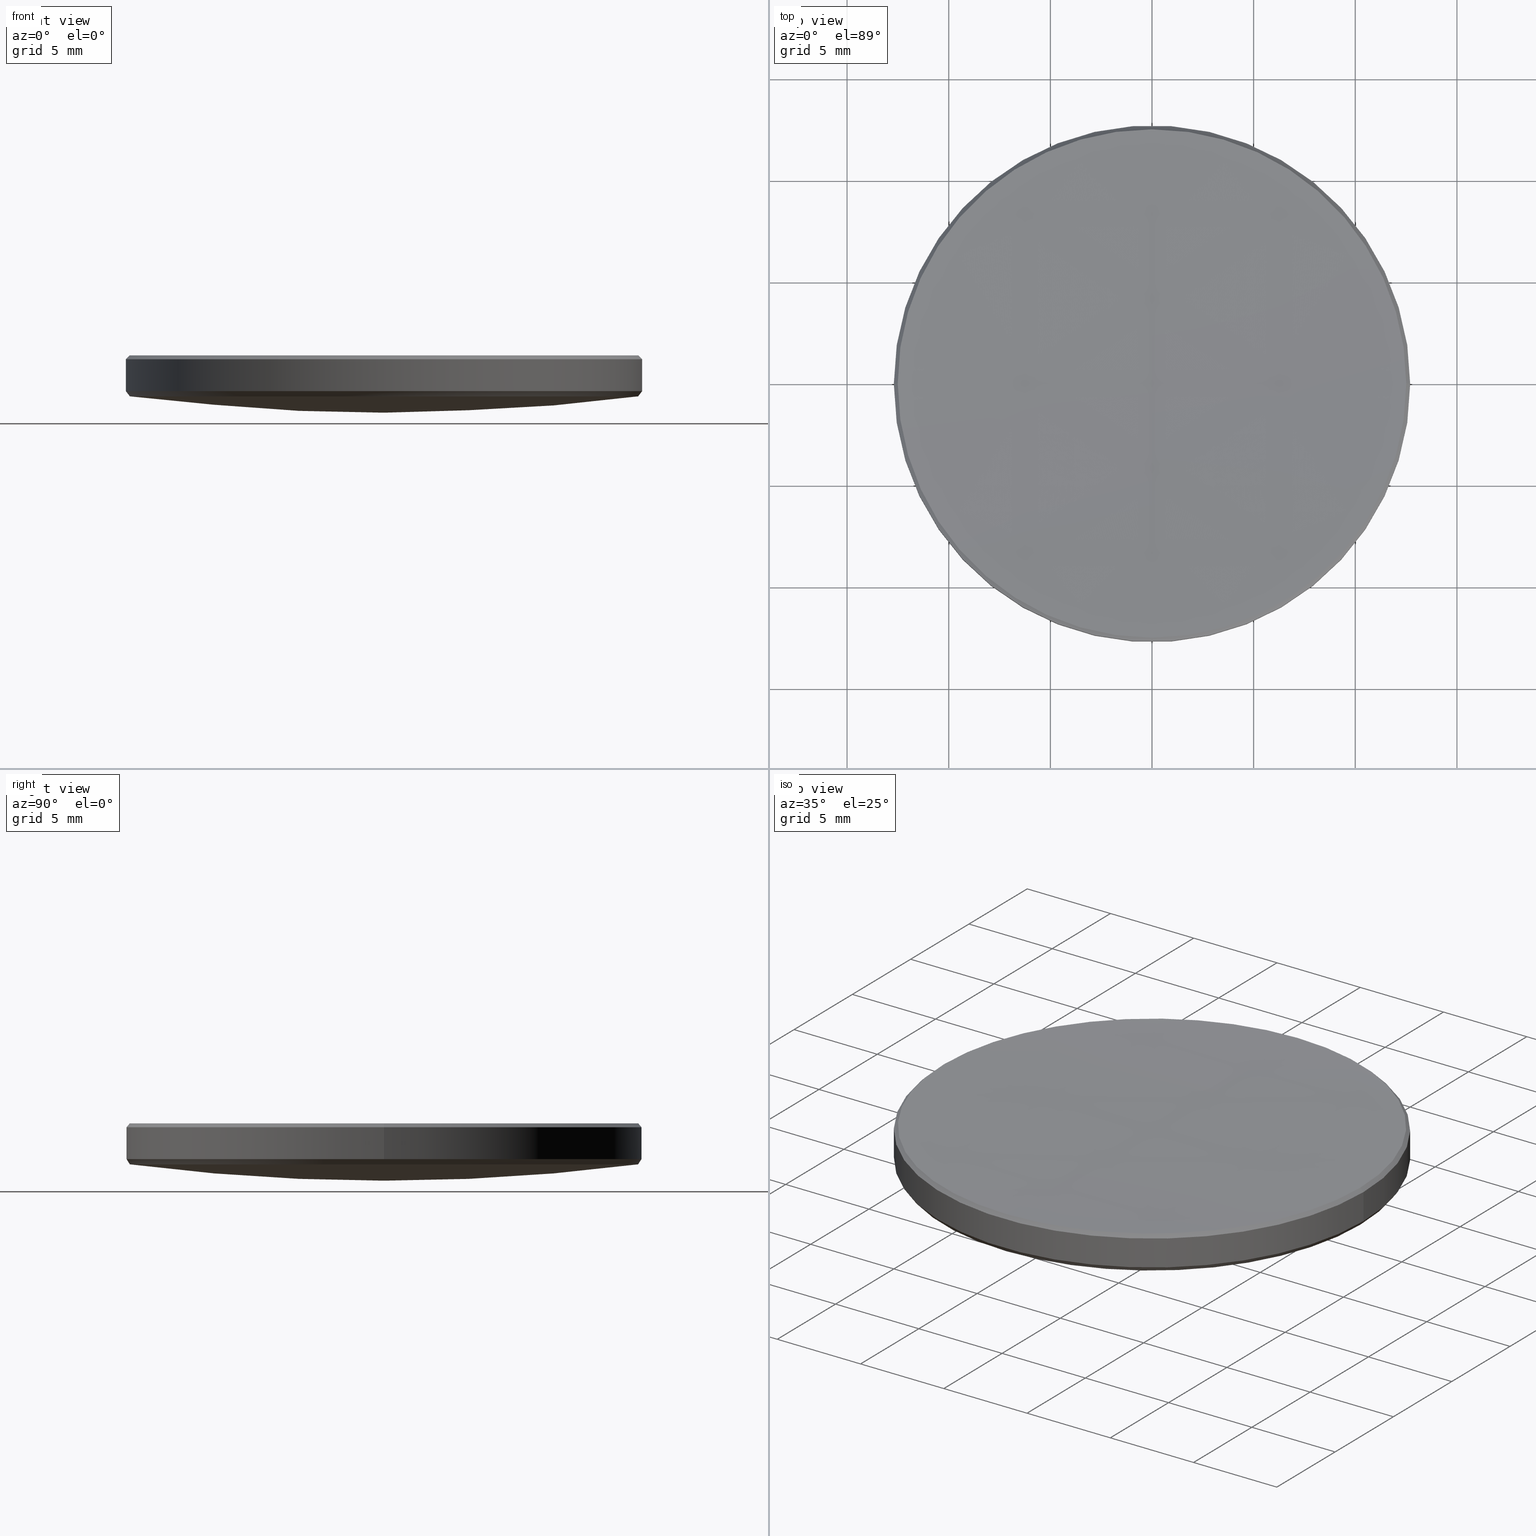
[diagram: canonical four-view strip — front | top / right | iso, engineering-drawing reading convention]
A machine part, canonical four-view strip (front | top / right | iso — engineering-drawing reading convention). The complete STEP part file that produces these views, byte-faithful:
ISO-10303-21;
HEADER;
FILE_DESCRIPTION (( 'STEP AP214' ),
    '1' );
FILE_NAME ('GLM2-025B-300-UV.STEP',
    '2024-08-09T02:46:19',
    ( 'Windows User' ),
    ( 'P R C' ),
    'SwSTEP 2.0',
    'SolidWorks 2022',
    '' );
FILE_SCHEMA (( 'AUTOMOTIVE_DESIGN' ));
ENDSEC;

DATA;
#1 =( LENGTH_UNIT ( ) NAMED_UNIT ( * ) SI_UNIT ( .MILLI., .METRE. ) );
#2 = EDGE_CURVE ( 'NONE', #194, #9, #235, .T. ) ;
#3 = DIRECTION ( 'NONE',  ( 1.000000000000000000, 0.000000000000000000, 0.000000000000000000 ) ) ;
#4 = CARTESIAN_POINT ( 'NONE',  ( 0.000000000000000000, 0.000000000000000000, 100.7802774329563533 ) ) ;
#5 = VECTOR ( 'NONE', #238, 1000.000000000000114 ) ;
#6 = EDGE_LOOP ( 'NONE', ( #239, #146, #314, #300 ) ) ;
#7 =( NAMED_UNIT ( * ) SI_UNIT ( $, .STERADIAN. ) SOLID_ANGLE_UNIT ( ) );
#8 = ORIENTED_EDGE ( 'NONE', *, *, #278, .T. ) ;
#9 = VERTEX_POINT ( 'NONE', #120 ) ;
#10 = CARTESIAN_POINT ( 'NONE',  ( 0.000000000000000000, 12.50735029655037422, 5.992649703450315002 ) ) ;
#11 = EDGE_LOOP ( 'NONE', ( #92, #223, #247, #317, #294 ) ) ;
#12 = CARTESIAN_POINT ( 'NONE',  ( 0.000000000000000000, 0.000000000000000000, 4.232182868515954155 ) ) ;
#13 = PRESENTATION_STYLE_ASSIGNMENT (( #202 ) ) ;
#14 = AXIS2_PLACEMENT_3D ( 'NONE', #232, #253, #329 ) ;
#15 = AXIS2_PLACEMENT_3D ( 'NONE', #216, #39, #148 ) ;
#16 = DIRECTION ( 'NONE',  ( 0.000000000000000000, 1.000000000000000000, 0.000000000000000000 ) ) ;
#17 = FILL_AREA_STYLE_COLOUR ( '', #160 ) ;
#18 = PRODUCT ( 'GLM2-025B-300-UV', 'GLM2-025B-300-UV', '', ( #158 ) ) ;
#19 = DIRECTION ( 'NONE',  ( 1.000000000000000000, 0.000000000000000000, 0.000000000000000000 ) ) ;
#20 = FACE_OUTER_BOUND ( 'NONE', #119, .T. ) ;
#21 = AXIS2_PLACEMENT_3D ( 'NONE', #209, #330, #283 ) ;
#22 = CARTESIAN_POINT ( 'NONE',  ( 12.50735029654975961, 1.531708650648435816E-15, 5.992649703450259047 ) ) ;
#23 = CIRCLE ( 'NONE', #53, 12.50735029654974895 ) ;
#24 = DIRECTION ( 'NONE',  ( 0.000000000000000000, 0.000000000000000000, 1.000000000000000000 ) ) ;
#25 = DIRECTION ( 'NONE',  ( -1.000000000000000000, 0.000000000000000000, 0.000000000000000000 ) ) ;
#26 = CARTESIAN_POINT ( 'NONE',  ( 0.000000000000000000, 0.000000000000000000, 4.232182868515954155 ) ) ;
#27 = CARTESIAN_POINT ( 'NONE',  ( 0.000000000000000000, 0.000000000000000000, 100.7802774329563533 ) ) ;
#28 = CIRCLE ( 'NONE', #199, 12.50735029654974895 ) ;
#29 =( GEOMETRIC_REPRESENTATION_CONTEXT ( 3 ) GLOBAL_UNCERTAINTY_ASSIGNED_CONTEXT ( ( #326 ) ) GLOBAL_UNIT_ASSIGNED_CONTEXT ( ( #1, #167, #7 ) ) REPRESENTATION_CONTEXT ( 'NONE', 'WORKASPACE' ) );
#30 = DIRECTION ( 'NONE',  ( -1.224646799147353207E-16, -1.000000000000000000, 0.000000000000000000 ) ) ;
#31 = LINE ( 'NONE', #272, #5 ) ;
#32 = CARTESIAN_POINT ( 'NONE',  ( -1.531708650648511547E-15, -12.50735029655037422, 5.992649703450315002 ) ) ;
#33 = ORIENTED_EDGE ( 'NONE', *, *, #290, .T. ) ;
#34 = COLOUR_RGB ( '',1.000000000000000000, 1.000000000000000000, 1.000000000000000000 ) ;
#35 = DIRECTION ( 'NONE',  ( -0.000000000000000000, -0.000000000000000000, -1.000000000000000000 ) ) ;
#36 = ORIENTED_EDGE ( 'NONE', *, *, #96, .T. ) ;
#37 = ORIENTED_EDGE ( 'NONE', *, *, #201, .F. ) ;
#38 = ADVANCED_FACE ( 'NONE', ( #125 ), #151, .F. ) ;
#39 = DIRECTION ( 'NONE',  ( -0.000000000000000000, -0.000000000000000000, 1.000000000000000000 ) ) ;
#40 = ORIENTED_EDGE ( 'NONE', *, *, #320, .T. ) ;
#41 = DIRECTION ( 'NONE',  ( 0.000000000000000000, 0.000000000000000000, -1.000000000000000000 ) ) ;
#42 = DIRECTION ( 'NONE',  ( 1.000000000000000000, 0.000000000000000000, 0.000000000000000000 ) ) ;
#43 =( NAMED_UNIT ( * ) SI_UNIT ( $, .STERADIAN. ) SOLID_ANGLE_UNIT ( ) );
#44 = SHAPE_DEFINITION_REPRESENTATION ( #323, #105 ) ;
#45 = ORIENTED_EDGE ( 'NONE', *, *, #111, .T. ) ;
#46 = DIRECTION ( 'NONE',  ( 1.000000000000000000, 0.000000000000000000, 0.000000000000000000 ) ) ;
#47 =( NAMED_UNIT ( * ) SI_UNIT ( $, .STERADIAN. ) SOLID_ANGLE_UNIT ( ) );
#48 = ORIENTED_EDGE ( 'NONE', *, *, #310, .T. ) ;
#49 = APPLICATION_PROTOCOL_DEFINITION ( 'draft international standard', 'automotive_design', 1998, #77 ) ;
#50 = CARTESIAN_POINT ( 'NONE',  ( 0.000000000000000000, 0.000000000000000000, 10.00000000000000000 ) ) ;
#51 = CLOSED_SHELL ( 'NONE', ( #157, #109, #197, #134, #257, #178, #162, #38, #70, #188 ) ) ;
#52 = DIRECTION ( 'NONE',  ( -1.000000000000000000, 0.000000000000000000, 0.000000000000000000 ) ) ;
#53 = AXIS2_PLACEMENT_3D ( 'NONE', #311, #88, #189 ) ;
#54 = CARTESIAN_POINT ( 'NONE',  ( 0.000000000000000000, 0.000000000000000000, 336.3359598953767886 ) ) ;
#55 = FACE_OUTER_BOUND ( 'NONE', #170, .T. ) ;
#56 = LINE ( 'NONE', #328, #211 ) ;
#57 = AXIS2_PLACEMENT_3D ( 'NONE', #228, #324, #16 ) ;
#58 = PRODUCT_DEFINITION_CONTEXT ( 'detailed design', #77, 'design' ) ;
#59 = LINE ( 'NONE', #222, #190 ) ;
#60 = CIRCLE ( 'NONE', #182, 330.5799999999999841 ) ;
#61 = STYLED_ITEM ( 'NONE', ( #13 ), #105 ) ;
#62 = SURFACE_STYLE_USAGE ( .BOTH. , #63 ) ;
#63 = SURFACE_SIDE_STYLE ('',( #87 ) ) ;
#64 = CARTESIAN_POINT ( 'NONE',  ( 0.000000000000000000, 0.000000000000000000, 10.00000000000000000 ) ) ;
#65 = EDGE_LOOP ( 'NONE', ( #243, #276, #75, #33, #91 ) ) ;
#66 = EDGE_LOOP ( 'NONE', ( #196, #321, #48, #40 ) ) ;
#67 = VECTOR ( 'NONE', #35, 1000.000000000000000 ) ;
#68 = VERTEX_POINT ( 'NONE', #245 ) ;
#69 = CARTESIAN_POINT ( 'NONE',  ( 0.000000000000000000, 0.000000000000000000, 336.3359598953767886 ) ) ;
#70 = ADVANCED_FACE ( 'NONE', ( #297 ), #240, .T. ) ;
#71 = SURFACE_STYLE_FILL_AREA ( #299 ) ;
#72 = VERTEX_POINT ( 'NONE', #203 ) ;
#73 = CIRCLE ( 'NONE', #288, 97.60999999999999943 ) ;
#74 = VECTOR ( 'NONE', #291, 1000.000000000000114 ) ;
#75 = ORIENTED_EDGE ( 'NONE', *, *, #306, .F. ) ;
#76 = CYLINDRICAL_SURFACE ( 'NONE', #230, 12.69999999999999929 ) ;
#77 = APPLICATION_CONTEXT ( 'automotive_design' ) ;
#78 = EDGE_CURVE ( 'NONE', #72, #172, #280, .T. ) ;
#79 = CIRCLE ( 'NONE', #263, 12.50187621270549165 ) ;
#80 = SPHERICAL_SURFACE ( 'NONE', #285, 330.5799999999999841 ) ;
#81 = MECHANICAL_DESIGN_GEOMETRIC_PRESENTATION_REPRESENTATION (  '', ( #61 ), #302 ) ;
#82 = CARTESIAN_POINT ( 'NONE',  ( -1.531038268722624004E-15, -12.50187621270551297, 3.974207420987641015 ) ) ;
#83 = PRODUCT_RELATED_PRODUCT_CATEGORY ( 'part', '', ( #18 ) ) ;
#84 = DIRECTION ( 'NONE',  ( 0.000000000000000000, 1.000000000000000000, 0.000000000000000000 ) ) ;
#85 = AXIS2_PLACEMENT_3D ( 'NONE', #205, #25, #84 ) ;
#86 = AXIS2_PLACEMENT_3D ( 'NONE', #69, #46, #41 ) ;
#87 = SURFACE_STYLE_FILL_AREA ( #219 ) ;
#88 = DIRECTION ( 'NONE',  ( -0.000000000000000000, -0.000000000000000000, 1.000000000000000000 ) ) ;
#89 = CYLINDRICAL_SURFACE ( 'NONE', #139, 12.69999999999999929 ) ;
#90 = CARTESIAN_POINT ( 'NONE',  ( 12.69999999999999929, 1.555301434917138433E-15, 10.00000000000000000 ) ) ;
#91 = ORIENTED_EDGE ( 'NONE', *, *, #227, .F. ) ;
#92 = ORIENTED_EDGE ( 'NONE', *, *, #96, .F. ) ;
#93 = DIRECTION ( 'NONE',  ( -1.000000000000000000, 0.000000000000000000, 0.000000000000000000 ) ) ;
#94 = VERTEX_POINT ( 'NONE', #164 ) ;
#95 = VERTEX_POINT ( 'NONE', #166 ) ;
#96 = EDGE_CURVE ( 'NONE', #173, #194, #308, .T. ) ;
#97 = ORIENTED_EDGE ( 'NONE', *, *, #227, .T. ) ;
#98 = UNCERTAINTY_MEASURE_WITH_UNIT (LENGTH_MEASURE( 1.000000000000000082E-05 ), #99, 'distance_accuracy_value', 'NONE');
#99 =( LENGTH_UNIT ( ) NAMED_UNIT ( * ) SI_UNIT ( .MILLI., .METRE. ) );
#100 = VERTEX_POINT ( 'NONE', #82 ) ;
#101 = CIRCLE ( 'NONE', #225, 12.50187621270549165 ) ;
#102 = DIRECTION ( 'NONE',  ( -0.000000000000000000, -0.000000000000000000, 1.000000000000000000 ) ) ;
#103 = EDGE_CURVE ( 'NONE', #293, #95, #171, .T. ) ;
#104 = FACE_OUTER_BOUND ( 'NONE', #66, .T. ) ;
#105 = ADVANCED_BREP_SHAPE_REPRESENTATION ( 'GLM2-025B-300-UV', ( #252, #208 ), #307 ) ;
#106 = CARTESIAN_POINT ( 'NONE',  ( 12.69999999999999929, 1.555301434917138433E-15, 5.800000000000138378 ) ) ;
#107 = MECHANICAL_DESIGN_GEOMETRIC_PRESENTATION_REPRESENTATION (  '', ( #331 ), #29 ) ;
#108 = DIRECTION ( 'NONE',  ( -0.000000000000000000, -0.000000000000000000, 1.000000000000000000 ) ) ;
#109 = ADVANCED_FACE ( 'NONE', ( #231 ), #259, .T. ) ;
#110 = DIRECTION ( 'NONE',  ( -1.000000000000000000, 0.000000000000000000, 0.000000000000000000 ) ) ;
#111 = EDGE_CURVE ( 'NONE', #68, #95, #56, .T. ) ;
#112 = DIRECTION ( 'NONE',  ( 0.000000000000000000, 0.000000000000000000, -1.000000000000000000 ) ) ;
#113 = APPLICATION_CONTEXT ( 'automotive_design' ) ;
#114 = EDGE_CURVE ( 'NONE', #68, #72, #101, .T. ) ;
#115 = DIRECTION ( 'NONE',  ( 1.000000000000000000, -0.000000000000000000, 0.000000000000000000 ) ) ;
#116 = ORIENTED_EDGE ( 'NONE', *, *, #278, .F. ) ;
#117 = EDGE_LOOP ( 'NONE', ( #143, #45, #226, #198, #274 ) ) ;
#118 = DIRECTION ( 'NONE',  ( 1.000000000000000000, 0.000000000000000000, 0.000000000000000000 ) ) ;
#119 = EDGE_LOOP ( 'NONE', ( #217, #169, #325, #97 ) ) ;
#120 = CARTESIAN_POINT ( 'NONE',  ( -12.69999999999999929, 0.000000000000000000, 5.800000000000138378 ) ) ;
#121 = DIRECTION ( 'NONE',  ( 0.000000000000000000, 0.000000000000000000, -1.000000000000000000 ) ) ;
#122 = ORIENTED_EDGE ( 'NONE', *, *, #138, .T. ) ;
#123 = ORIENTED_EDGE ( 'NONE', *, *, #129, .T. ) ;
#124 = UNCERTAINTY_MEASURE_WITH_UNIT (LENGTH_MEASURE( 1.000000000000000082E-05 ), #200, 'distance_accuracy_value', 'NONE');
#125 = FACE_OUTER_BOUND ( 'NONE', #218, .T. ) ;
#126 = DIRECTION ( 'NONE',  ( 1.000000000000000000, 0.000000000000000000, 0.000000000000000000 ) ) ;
#127 = DIRECTION ( 'NONE',  ( -0.000000000000000000, -0.000000000000000000, 1.000000000000000000 ) ) ;
#128 = DIRECTION ( 'NONE',  ( -0.6090947068628953520, 7.459258831372403609E-17, 0.7930974959433446658 ) ) ;
#129 = EDGE_CURVE ( 'NONE', #318, #266, #28, .T. ) ;
#130 = PRESENTATION_LAYER_ASSIGNMENT (  '', '', ( #331 ) ) ;
#131 = AXIS2_PLACEMENT_3D ( 'NONE', #140, #112, #212 ) ;
#132 = CARTESIAN_POINT ( 'NONE',  ( 0.000000000000000000, 0.000000000000000000, 3.974207420987641015 ) ) ;
#133 = DIRECTION ( 'NONE',  ( -0.000000000000000000, -0.000000000000000000, -1.000000000000000000 ) ) ;
#134 = ADVANCED_FACE ( 'NONE', ( #55 ), #185, .T. ) ;
#135 = FACE_OUTER_BOUND ( 'NONE', #179, .T. ) ;
#136 = AXIS2_PLACEMENT_3D ( 'NONE', #181, #233, #234 ) ;
#137 = FACE_OUTER_BOUND ( 'NONE', #292, .T. ) ;
#138 = EDGE_CURVE ( 'NONE', #94, #100, #73, .T. ) ;
#139 = AXIS2_PLACEMENT_3D ( 'NONE', #64, #213, #93 ) ;
#140 = CARTESIAN_POINT ( 'NONE',  ( 0.000000000000000000, 0.000000000000000000, 3.974207420987641015 ) ) ;
#141 = DIRECTION ( 'NONE',  ( -0.000000000000000000, -0.000000000000000000, 1.000000000000000000 ) ) ;
#142 = PRODUCT_DEFINITION ( 'δ֪', '', #215, #58 ) ;
#143 = ORIENTED_EDGE ( 'NONE', *, *, #114, .F. ) ;
#144 = AXIS2_PLACEMENT_3D ( 'NONE', #145, #236, #195 ) ;
#145 = CARTESIAN_POINT ( 'NONE',  ( 0.000000000000000000, 0.000000000000000000, 4.232182868515954155 ) ) ;
#146 = ORIENTED_EDGE ( 'NONE', *, *, #220, .T. ) ;
#147 = ORIENTED_EDGE ( 'NONE', *, *, #246, .F. ) ;
#148 = DIRECTION ( 'NONE',  ( 1.000000000000000000, 0.000000000000000000, 0.000000000000000000 ) ) ;
#149 = VERTEX_POINT ( 'NONE', #206 ) ;
#150 = ORIENTED_EDGE ( 'NONE', *, *, #78, .T. ) ;
#151 = SPHERICAL_SURFACE ( 'NONE', #57, 330.5799999999999841 ) ;
#152 = AXIS2_PLACEMENT_3D ( 'NONE', #12, #127, #42 ) ;
#153 = CIRCLE ( 'NONE', #131, 12.50187621270549165 ) ;
#154 = DIRECTION ( 'NONE',  ( 1.000000000000000000, 0.000000000000000000, 0.000000000000000000 ) ) ;
#155 = ORIENTED_EDGE ( 'NONE', *, *, #254, .T. ) ;
#156 = CARTESIAN_POINT ( 'NONE',  ( 0.000000000000000000, 0.000000000000000000, 0.000000000000000000 ) ) ;
#157 = ADVANCED_FACE ( 'NONE', ( #137 ), #301, .T. ) ;
#158 = PRODUCT_CONTEXT ( 'NONE', #113, 'mechanical' ) ;
#159 = DIRECTION ( 'NONE',  ( -1.000000000000000000, 0.000000000000000000, 0.000000000000000000 ) ) ;
#160 = COLOUR_RGB ( '',1.000000000000000000, 1.000000000000000000, 1.000000000000000000 ) ;
#161 = DIRECTION ( 'NONE',  ( 0.000000000000000000, 1.000000000000000000, 0.000000000000000000 ) ) ;
#162 = ADVANCED_FACE ( 'NONE', ( #135 ), #229, .T. ) ;
#163 = DIRECTION ( 'NONE',  ( -1.000000000000000000, 0.000000000000000000, 0.000000000000000000 ) ) ;
#164 = CARTESIAN_POINT ( 'NONE',  ( 0.000000000000000000, 5.976888703238657615E-15, 3.170277432956350339 ) ) ;
#165 = CIRCLE ( 'NONE', #270, 12.69999999999999929 ) ;
#166 = CARTESIAN_POINT ( 'NONE',  ( -12.69999999999999929, 0.000000000000000000, 4.232182868515954155 ) ) ;
#167 =( NAMED_UNIT ( * ) PLANE_ANGLE_UNIT ( ) SI_UNIT ( $, .RADIAN. ) );
#168 = DIRECTION ( 'NONE',  ( 0.000000000000000000, 0.000000000000000000, -1.000000000000000000 ) ) ;
#169 = ORIENTED_EDGE ( 'NONE', *, *, #2, .T. ) ;
#170 = EDGE_LOOP ( 'NONE', ( #116, #122, #155, #224 ) ) ;
#171 = CIRCLE ( 'NONE', #248, 12.69999999999999929 ) ;
#172 = VERTEX_POINT ( 'NONE', #303 ) ;
#173 = VERTEX_POINT ( 'NONE', #284 ) ;
#174 = SURFACE_SIDE_STYLE ('',( #71 ) ) ;
#175 =( NAMED_UNIT ( * ) PLANE_ANGLE_UNIT ( ) SI_UNIT ( $, .RADIAN. ) );
#176 = VECTOR ( 'NONE', #279, 1000.000000000000114 ) ;
#177 =( NAMED_UNIT ( * ) PLANE_ANGLE_UNIT ( ) SI_UNIT ( $, .RADIAN. ) );
#178 = ADVANCED_FACE ( 'NONE', ( #20 ), #76, .T. ) ;
#179 = EDGE_LOOP ( 'NONE', ( #271, #8, #150, #315 ) ) ;
#180 = DIRECTION ( 'NONE',  ( -1.000000000000000000, 1.224646799147353207E-16, 0.000000000000000000 ) ) ;
#181 = CARTESIAN_POINT ( 'NONE',  ( 0.000000000000000000, 0.000000000000000000, 3.974207420987641015 ) ) ;
#182 = AXIS2_PLACEMENT_3D ( 'NONE', #305, #237, #30 ) ;
#183 = DIRECTION ( 'NONE',  ( 0.000000000000000000, 0.000000000000000000, -1.000000000000000000 ) ) ;
#184 = CARTESIAN_POINT ( 'NONE',  ( 0.000000000000000000, 0.000000000000000000, 5.992649703450315002 ) ) ;
#185 = SPHERICAL_SURFACE ( 'NONE', #214, 97.60999999999999943 ) ;
#186 = AXIS2_PLACEMENT_3D ( 'NONE', #250, #298, #19 ) ;
#187 = CARTESIAN_POINT ( 'NONE',  ( 12.69999999999999929, 0.000000000000000000, 4.232182868515954155 ) ) ;
#188 = ADVANCED_FACE ( 'NONE', ( #255 ), #319, .T. ) ;
#189 = DIRECTION ( 'NONE',  ( 1.000000000000000000, 0.000000000000000000, 0.000000000000000000 ) ) ;
#190 = VECTOR ( 'NONE', #265, 1000.000000000000000 ) ;
#191 = CIRCLE ( 'NONE', #296, 97.60999999999999943 ) ;
#192 = PRESENTATION_STYLE_ASSIGNMENT (( #62 ) ) ;
#193 = LINE ( 'NONE', #187, #74 ) ;
#194 = VERTEX_POINT ( 'NONE', #106 ) ;
#195 = DIRECTION ( 'NONE',  ( -1.000000000000000000, 0.000000000000000000, 0.000000000000000000 ) ) ;
#196 = ORIENTED_EDGE ( 'NONE', *, *, #327, .F. ) ;
#197 = ADVANCED_FACE ( 'NONE', ( #104 ), #80, .F. ) ;
#198 = ORIENTED_EDGE ( 'NONE', *, *, #290, .F. ) ;
#199 = AXIS2_PLACEMENT_3D ( 'NONE', #184, #102, #210 ) ;
#200 =( LENGTH_UNIT ( ) NAMED_UNIT ( * ) SI_UNIT ( .MILLI., .METRE. ) );
#201 = EDGE_CURVE ( 'NONE', #149, #266, #60, .T. ) ;
#202 = SURFACE_STYLE_USAGE ( .BOTH. , #174 ) ;
#203 = CARTESIAN_POINT ( 'NONE',  ( 0.000000000000000000, 12.50187621270551297, 3.974207420987641015 ) ) ;
#204 = CIRCLE ( 'NONE', #86, 330.5799999999999841 ) ;
#205 = CARTESIAN_POINT ( 'NONE',  ( 0.000000000000000000, 0.000000000000000000, 100.7802774329563533 ) ) ;
#206 = CARTESIAN_POINT ( 'NONE',  ( 0.000000000000000000, 2.024218694310659877E-14, 5.755959895376805413 ) ) ;
#207 = CARTESIAN_POINT ( 'NONE',  ( 0.000000000000000000, 0.000000000000000000, 100.7802774329563533 ) ) ;
#208 = AXIS2_PLACEMENT_3D ( 'NONE', #156, #24, #154 ) ;
#209 = CARTESIAN_POINT ( 'NONE',  ( 0.000000000000000000, 0.000000000000000000, 4.232182868515954155 ) ) ;
#210 = DIRECTION ( 'NONE',  ( 1.000000000000000000, 0.000000000000000000, 0.000000000000000000 ) ) ;
#211 = VECTOR ( 'NONE', #128, 1000.000000000000114 ) ;
#212 = DIRECTION ( 'NONE',  ( 1.000000000000000000, 0.000000000000000000, 0.000000000000000000 ) ) ;
#213 = DIRECTION ( 'NONE',  ( -0.000000000000000000, -0.000000000000000000, -1.000000000000000000 ) ) ;
#214 = AXIS2_PLACEMENT_3D ( 'NONE', #27, #52, #161 ) ;
#215 = PRODUCT_DEFINITION_FORMATION_WITH_SPECIFIED_SOURCE ( '�κ�', '', #18, .NOT_KNOWN. ) ;
#216 = CARTESIAN_POINT ( 'NONE',  ( 0.000000000000000000, 0.000000000000000000, 5.992649703450315002 ) ) ;
#217 = ORIENTED_EDGE ( 'NONE', *, *, #220, .F. ) ;
#218 = EDGE_LOOP ( 'NONE', ( #37, #244, #251, #123 ) ) ;
#219 = FILL_AREA_STYLE ('',( #242 ) ) ;
#220 = EDGE_CURVE ( 'NONE', #194, #293, #268, .T. ) ;
#221 = ORIENTED_EDGE ( 'NONE', *, *, #267, .F. ) ;
#222 = CARTESIAN_POINT ( 'NONE',  ( -12.69999999999999929, 0.000000000000000000, 10.00000000000000000 ) ) ;
#223 = ORIENTED_EDGE ( 'NONE', *, *, #310, .F. ) ;
#224 = ORIENTED_EDGE ( 'NONE', *, *, #114, .T. ) ;
#225 = AXIS2_PLACEMENT_3D ( 'NONE', #132, #183, #332 ) ;
#226 = ORIENTED_EDGE ( 'NONE', *, *, #103, .F. ) ;
#227 = EDGE_CURVE ( 'NONE', #95, #293, #309, .T. ) ;
#228 = CARTESIAN_POINT ( 'NONE',  ( 0.000000000000000000, 0.000000000000000000, 336.3359598953767886 ) ) ;
#229 = SPHERICAL_SURFACE ( 'NONE', #85, 97.60999999999999943 ) ;
#230 = AXIS2_PLACEMENT_3D ( 'NONE', #50, #133, #159 ) ;
#231 = FACE_OUTER_BOUND ( 'NONE', #117, .T. ) ;
#232 = CARTESIAN_POINT ( 'NONE',  ( 0.000000000000000000, 0.000000000000000000, 5.992649703450259047 ) ) ;
#233 = DIRECTION ( 'NONE',  ( 0.000000000000000000, 0.000000000000000000, -1.000000000000000000 ) ) ;
#234 = DIRECTION ( 'NONE',  ( 1.000000000000000000, 0.000000000000000000, 0.000000000000000000 ) ) ;
#235 = CIRCLE ( 'NONE', #186, 12.69999999999999929 ) ;
#236 = DIRECTION ( 'NONE',  ( -0.000000000000000000, -0.000000000000000000, 1.000000000000000000 ) ) ;
#237 = DIRECTION ( 'NONE',  ( -1.000000000000000000, 1.224646799147353207E-16, 0.000000000000000000 ) ) ;
#238 = DIRECTION ( 'NONE',  ( -0.7071067811867671749, 0.000000000000000000, -0.7071067811863278596 ) ) ;
#239 = ORIENTED_EDGE ( 'NONE', *, *, #246, .T. ) ;
#240 = CONICAL_SURFACE ( 'NONE', #152, 12.69999999999999929, 0.6549186247799154703 ) ;
#241 = PRESENTATION_LAYER_ASSIGNMENT (  '', '', ( #61 ) ) ;
#242 = FILL_AREA_STYLE_COLOUR ( '', #34 ) ;
#243 = ORIENTED_EDGE ( 'NONE', *, *, #111, .F. ) ;
#244 = ORIENTED_EDGE ( 'NONE', *, *, #327, .T. ) ;
#245 = CARTESIAN_POINT ( 'NONE',  ( -12.50187621270549165, 1.543169851819880035E-15, 3.974207420987641015 ) ) ;
#246 = EDGE_CURVE ( 'NONE', #9, #194, #165, .T. ) ;
#247 = ORIENTED_EDGE ( 'NONE', *, *, #129, .F. ) ;
#248 = AXIS2_PLACEMENT_3D ( 'NONE', #26, #108, #281 ) ;
#249 = AXIS2_PLACEMENT_3D ( 'NONE', #264, #141, #126 ) ;
#250 = CARTESIAN_POINT ( 'NONE',  ( 0.000000000000000000, 0.000000000000000000, 5.800000000000138378 ) ) ;
#251 = ORIENTED_EDGE ( 'NONE', *, *, #282, .T. ) ;
#252 = MANIFOLD_SOLID_BREP ( '����1', #51 ) ;
#253 = DIRECTION ( 'NONE',  ( 0.000000000000000000, 0.000000000000000000, -1.000000000000000000 ) ) ;
#254 = EDGE_CURVE ( 'NONE', #100, #68, #79, .T. ) ;
#255 = FACE_OUTER_BOUND ( 'NONE', #11, .T. ) ;
#256 = DIRECTION ( 'NONE',  ( 0.000000000000000000, 1.000000000000000000, 0.000000000000000000 ) ) ;
#257 = ADVANCED_FACE ( 'NONE', ( #313 ), #89, .T. ) ;
#258 = DIRECTION ( 'NONE',  ( -1.224646799147353207E-16, -1.000000000000000000, 0.000000000000000000 ) ) ;
#259 = CONICAL_SURFACE ( 'NONE', #21, 12.69999999999999929, 0.6549186247799154703 ) ;
#260 = CIRCLE ( 'NONE', #249, 12.50735029654974895 ) ;
#261 = EDGE_CURVE ( 'NONE', #9, #95, #59, .T. ) ;
#262 = CARTESIAN_POINT ( 'NONE',  ( 12.69999999999999929, 1.555301434917138433E-15, 4.232182868515954155 ) ) ;
#263 = AXIS2_PLACEMENT_3D ( 'NONE', #316, #168, #3 ) ;
#264 = CARTESIAN_POINT ( 'NONE',  ( 0.000000000000000000, 0.000000000000000000, 5.992649703450315002 ) ) ;
#265 = DIRECTION ( 'NONE',  ( -0.000000000000000000, -0.000000000000000000, -1.000000000000000000 ) ) ;
#266 = VERTEX_POINT ( 'NONE', #32 ) ;
#267 = EDGE_CURVE ( 'NONE', #318, #9, #31, .T. ) ;
#268 = LINE ( 'NONE', #90, #67 ) ;
#269 = ORIENTED_EDGE ( 'NONE', *, *, #282, .F. ) ;
#270 = AXIS2_PLACEMENT_3D ( 'NONE', #286, #312, #118 ) ;
#271 = ORIENTED_EDGE ( 'NONE', *, *, #138, .F. ) ;
#272 = CARTESIAN_POINT ( 'NONE',  ( -12.50735029654975961, 0.000000000000000000, 5.992649703450259047 ) ) ;
#273 = VERTEX_POINT ( 'NONE', #10 ) ;
#274 = ORIENTED_EDGE ( 'NONE', *, *, #78, .F. ) ;
#275 = ORIENTED_EDGE ( 'NONE', *, *, #320, .F. ) ;
#276 = ORIENTED_EDGE ( 'NONE', *, *, #254, .F. ) ;
#277 = CARTESIAN_POINT ( 'NONE',  ( 0.000000000000000000, 0.000000000000000000, 5.992649703450259047 ) ) ;
#278 = EDGE_CURVE ( 'NONE', #94, #72, #191, .T. ) ;
#279 = DIRECTION ( 'NONE',  ( 0.7071067811867671749, 8.659560562357622381E-17, -0.7071067811863278596 ) ) ;
#280 = CIRCLE ( 'NONE', #136, 12.50187621270549165 ) ;
#281 = DIRECTION ( 'NONE',  ( -1.000000000000000000, 0.000000000000000000, 0.000000000000000000 ) ) ;
#282 = EDGE_CURVE ( 'NONE', #273, #318, #289, .T. ) ;
#283 = DIRECTION ( 'NONE',  ( 1.000000000000000000, 0.000000000000000000, 0.000000000000000000 ) ) ;
#284 = CARTESIAN_POINT ( 'NONE',  ( 12.50735029654974895, 1.543505042782786336E-15, 5.992649703450315002 ) ) ;
#285 = AXIS2_PLACEMENT_3D ( 'NONE', #54, #163, #256 ) ;
#286 = CARTESIAN_POINT ( 'NONE',  ( 0.000000000000000000, 0.000000000000000000, 5.800000000000138378 ) ) ;
#287 = CARTESIAN_POINT ( 'NONE',  ( -12.50735029654974895, 0.000000000000000000, 5.992649703450315002 ) ) ;
#288 = AXIS2_PLACEMENT_3D ( 'NONE', #207, #180, #258 ) ;
#289 = CIRCLE ( 'NONE', #15, 12.50735029654974895 ) ;
#290 = EDGE_CURVE ( 'NONE', #172, #293, #193, .T. ) ;
#291 = DIRECTION ( 'NONE',  ( 0.6090947068628953520, 0.000000000000000000, 0.7930974959433446658 ) ) ;
#292 = EDGE_LOOP ( 'NONE', ( #275, #36, #147, #221, #269 ) ) ;
#293 = VERTEX_POINT ( 'NONE', #262 ) ;
#294 = ORIENTED_EDGE ( 'NONE', *, *, #2, .F. ) ;
#295 = AXIS2_PLACEMENT_3D ( 'NONE', #277, #304, #110 ) ;
#296 = AXIS2_PLACEMENT_3D ( 'NONE', #4, #115, #121 ) ;
#297 = FACE_OUTER_BOUND ( 'NONE', #65, .T. ) ;
#298 = DIRECTION ( 'NONE',  ( 0.000000000000000000, 0.000000000000000000, -1.000000000000000000 ) ) ;
#299 = FILL_AREA_STYLE ('',( #17 ) ) ;
#300 = ORIENTED_EDGE ( 'NONE', *, *, #261, .F. ) ;
#301 = CONICAL_SURFACE ( 'NONE', #295, 12.50735029654975961, 0.7853981633977589194 ) ;
#302 =( GEOMETRIC_REPRESENTATION_CONTEXT ( 3 ) GLOBAL_UNCERTAINTY_ASSIGNED_CONTEXT ( ( #98 ) ) GLOBAL_UNIT_ASSIGNED_CONTEXT ( ( #99, #177, #47 ) ) REPRESENTATION_CONTEXT ( 'NONE', 'WORKASPACE' ) );
#303 = CARTESIAN_POINT ( 'NONE',  ( 12.50187621270549165, 0.000000000000000000, 3.974207420987641015 ) ) ;
#304 = DIRECTION ( 'NONE',  ( 0.000000000000000000, 0.000000000000000000, -1.000000000000000000 ) ) ;
#305 = CARTESIAN_POINT ( 'NONE',  ( 0.000000000000000000, 0.000000000000000000, 336.3359598953767886 ) ) ;
#306 = EDGE_CURVE ( 'NONE', #172, #100, #153, .T. ) ;
#307 =( GEOMETRIC_REPRESENTATION_CONTEXT ( 3 ) GLOBAL_UNCERTAINTY_ASSIGNED_CONTEXT ( ( #124 ) ) GLOBAL_UNIT_ASSIGNED_CONTEXT ( ( #200, #175, #43 ) ) REPRESENTATION_CONTEXT ( 'NONE', 'WORKASPACE' ) );
#308 = LINE ( 'NONE', #22, #176 ) ;
#309 = CIRCLE ( 'NONE', #144, 12.69999999999999929 ) ;
#310 = EDGE_CURVE ( 'NONE', #266, #173, #23, .T. ) ;
#311 = CARTESIAN_POINT ( 'NONE',  ( 0.000000000000000000, 0.000000000000000000, 5.992649703450315002 ) ) ;
#312 = DIRECTION ( 'NONE',  ( 0.000000000000000000, 0.000000000000000000, -1.000000000000000000 ) ) ;
#313 = FACE_OUTER_BOUND ( 'NONE', #6, .T. ) ;
#314 = ORIENTED_EDGE ( 'NONE', *, *, #103, .T. ) ;
#315 = ORIENTED_EDGE ( 'NONE', *, *, #306, .T. ) ;
#316 = CARTESIAN_POINT ( 'NONE',  ( 0.000000000000000000, 0.000000000000000000, 3.974207420987641015 ) ) ;
#317 = ORIENTED_EDGE ( 'NONE', *, *, #267, .T. ) ;
#318 = VERTEX_POINT ( 'NONE', #287 ) ;
#319 = CONICAL_SURFACE ( 'NONE', #14, 12.50735029654975961, 0.7853981633977589194 ) ;
#320 = EDGE_CURVE ( 'NONE', #173, #273, #260, .T. ) ;
#321 = ORIENTED_EDGE ( 'NONE', *, *, #201, .T. ) ;
#322 = APPLICATION_PROTOCOL_DEFINITION ( 'draft international standard', 'automotive_design', 1998, #113 ) ;
#323 = PRODUCT_DEFINITION_SHAPE ( 'NONE', 'NONE',  #142 ) ;
#324 = DIRECTION ( 'NONE',  ( -1.000000000000000000, 0.000000000000000000, 0.000000000000000000 ) ) ;
#325 = ORIENTED_EDGE ( 'NONE', *, *, #261, .T. ) ;
#326 = UNCERTAINTY_MEASURE_WITH_UNIT (LENGTH_MEASURE( 1.000000000000000082E-05 ), #1, 'distance_accuracy_value', 'NONE');
#327 = EDGE_CURVE ( 'NONE', #149, #273, #204, .T. ) ;
#328 = CARTESIAN_POINT ( 'NONE',  ( -12.69999999999999929, 1.555301434917138433E-15, 4.232182868515954155 ) ) ;
#329 = DIRECTION ( 'NONE',  ( -1.000000000000000000, 0.000000000000000000, 0.000000000000000000 ) ) ;
#330 = DIRECTION ( 'NONE',  ( -0.000000000000000000, -0.000000000000000000, 1.000000000000000000 ) ) ;
#331 = STYLED_ITEM ( 'NONE', ( #192 ), #252 ) ;
#332 = DIRECTION ( 'NONE',  ( 1.000000000000000000, 0.000000000000000000, 0.000000000000000000 ) ) ;
ENDSEC;
END-ISO-10303-21;
